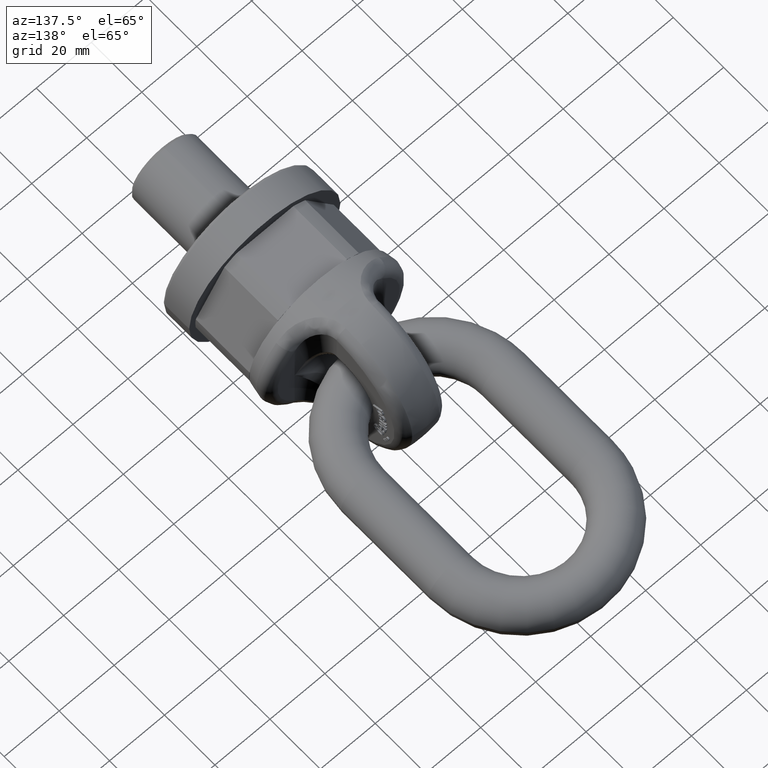
[diagram: clean part render]
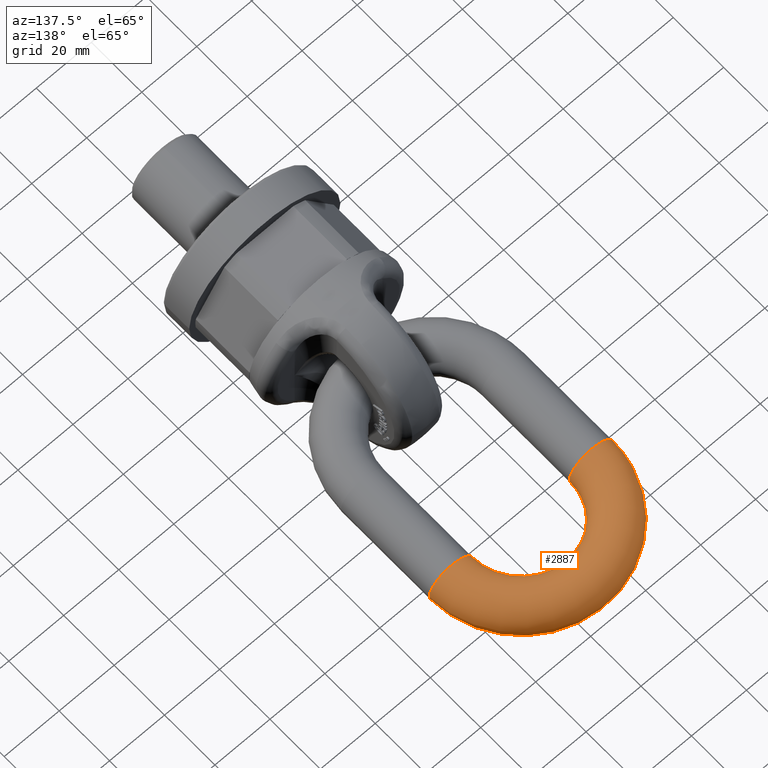
[diagram: same view with one face highlighted and labeled with its STEP entity id]
A machine part, auxiliary view. The second image highlights one B-rep face of the part: STEP entity #2887.
In plain terms, the highlighted toroidal blend (fillet) surface has major radius 25.5 mm and minor (blend) radius 8 mm.
Its self-contained STEP definition (entity closure, byte-faithful):
#1805=TOROIDAL_SURFACE('',#5808,25.5,8.);
#2887=ADVANCED_FACE('',(#3063,#3064),#1805,.T.);
#3063=FACE_BOUND('',#3349,.T.);
#3064=FACE_BOUND('',#3350,.T.);
#3349=EDGE_LOOP('',(#4541));
#3350=EDGE_LOOP('',(#4542));
#4541=ORIENTED_EDGE('',*,*,#5536,.F.);
#4542=ORIENTED_EDGE('',*,*,#5534,.T.);
#4938=VERTEX_POINT('',#9688);
#4940=VERTEX_POINT('',#9694);
#5534=EDGE_CURVE('',#4938,#4938,#5600,.T.);
#5536=EDGE_CURVE('',#4940,#4940,#5602,.T.);
#5600=CIRCLE('',#5802,8.);
#5602=CIRCLE('',#5806,8.);
#5802=AXIS2_PLACEMENT_3D('',#9687,#6555,#6556);
#5806=AXIS2_PLACEMENT_3D('',#9693,#6563,#6564);
#5808=AXIS2_PLACEMENT_3D('',#9696,#6567,#6568);
#6555=DIRECTION('',(-1.21365530983203E-15,1.,0.));
#6556=DIRECTION('',(-1.,-1.73472347597681E-15,0.));
#6563=DIRECTION('',(2.03012210217171E-16,-1.,0.));
#6564=DIRECTION('',(1.,0.,0.));
#6567=DIRECTION('',(0.,0.,1.));
#6568=DIRECTION('',(1.,0.,0.));
#9687=CARTESIAN_POINT('',(-25.5,112.5,0.));
#9688=CARTESIAN_POINT('',(-33.5,112.5,0.));
#9693=CARTESIAN_POINT('',(25.5,112.5,0.));
#9694=CARTESIAN_POINT('',(33.5,112.5,0.));
#9696=CARTESIAN_POINT('',(1.73472347597681E-14,112.5,0.));